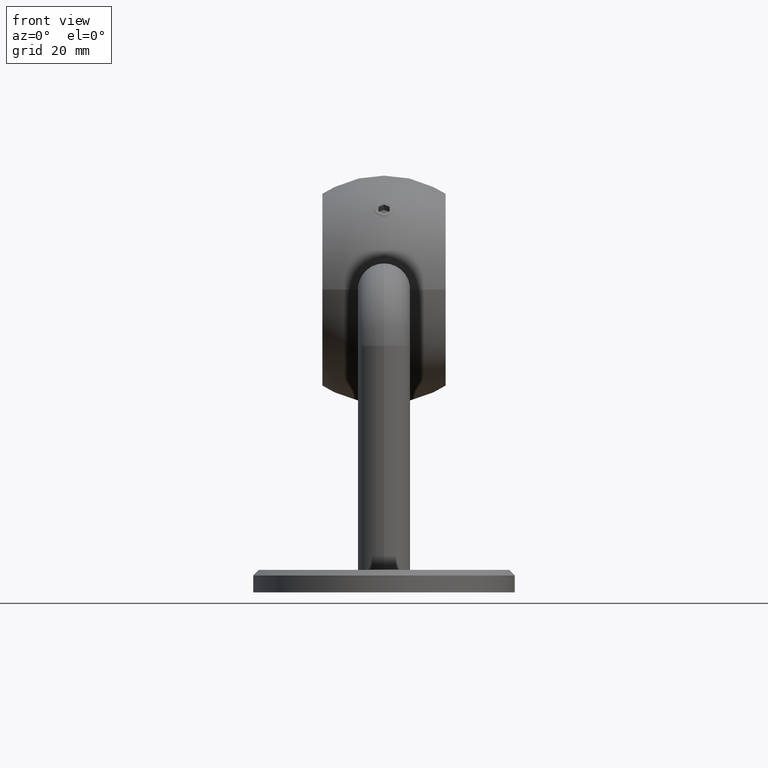
[diagram: clean part render]
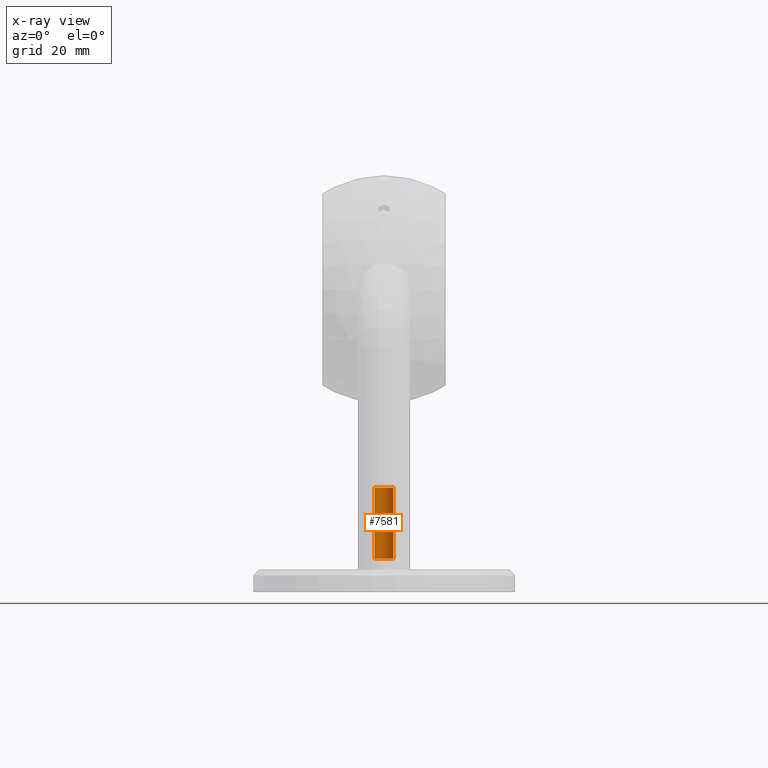
[diagram: x-ray — body ghosted, one internal face saturated and labeled with its STEP entity id]
A machine part, front view, then the same camera in x-ray: the body is ghosted and one INTERNAL B-rep face — a face not visible from any outside direction — is saturated and labeled: STEP entity #7581.
In plain terms, the highlighted cylindrical surface (edge-blend (fillet) strip) has radius 2.5 mm, axis along (-0, -0, -1).
Its self-contained STEP definition (entity closure, byte-faithful):
#86 = FACE_OUTER_BOUND ( 'NONE', #31228, .T. ) ;
#435 = CARTESIAN_POINT ( 'NONE',  ( 2.499999999999994227, 3.061616997868376239E-16, 22.00000000000000000 ) ) ;
#999 = ORIENTED_EDGE ( 'NONE', *, *, #20590, .F. ) ;
#1883 = CARTESIAN_POINT ( 'NONE',  ( 0.000000000000000000, 0.000000000000000000, 3.000000000000006217 ) ) ;
#2342 = EDGE_CURVE ( 'NONE', #3604, #4436, #3390, .T. ) ;
#3081 = ORIENTED_EDGE ( 'NONE', *, *, #29575, .F. ) ;
#3390 = LINE ( 'NONE', #34480, #4247 ) ;
#3584 = VECTOR ( 'NONE', #32676, 1000.000000000000000 ) ;
#3604 = VERTEX_POINT ( 'NONE', #435 ) ;
#4247 = VECTOR ( 'NONE', #23867, 1000.000000000000000 ) ;
#4436 = VERTEX_POINT ( 'NONE', #31402 ) ;
#5079 = CARTESIAN_POINT ( 'NONE',  ( -2.499999999999992450, 0.000000000000000000, 0.000000000000000000 ) ) ;
#6340 = ORIENTED_EDGE ( 'NONE', *, *, #28736, .T. ) ;
#6937 = CARTESIAN_POINT ( 'NONE',  ( 0.000000000000000000, 0.000000000000000000, 0.000000000000000000 ) ) ;
#7174 = DIRECTION ( 'NONE',  ( -1.000000000000000000, 0.000000000000000000, 0.000000000000000000 ) ) ;
#7231 = CIRCLE ( 'NONE', #21704, 2.499999999999992450 ) ;
#7391 = CIRCLE ( 'NONE', #10983, 2.499999999999994227 ) ;
#7464 = VERTEX_POINT ( 'NONE', #32791 ) ;
#7581 = ADVANCED_FACE ( 'NONE', ( #86 ), #29992, .F. ) ;
#10983 = AXIS2_PLACEMENT_3D ( 'NONE', #32611, #27618, #11471 ) ;
#11471 = DIRECTION ( 'NONE',  ( -1.000000000000000000, 0.000000000000000000, 0.000000000000000000 ) ) ;
#12670 = DIRECTION ( 'NONE',  ( -0.000000000000000000, -0.000000000000000000, -1.000000000000000000 ) ) ;
#15260 = DIRECTION ( 'NONE',  ( 0.000000000000000000, 0.000000000000000000, 1.000000000000000000 ) ) ;
#20590 = EDGE_CURVE ( 'NONE', #4436, #25871, #7231, .T. ) ;
#21704 = AXIS2_PLACEMENT_3D ( 'NONE', #1883, #15260, #28510 ) ;
#22192 = CARTESIAN_POINT ( 'NONE',  ( -2.499999999999992450, 0.000000000000000000, 3.000000000000006217 ) ) ;
#22362 = AXIS2_PLACEMENT_3D ( 'NONE', #6937, #12670, #7174 ) ;
#23867 = DIRECTION ( 'NONE',  ( -0.000000000000000000, -0.000000000000000000, -1.000000000000000000 ) ) ;
#24162 = ORIENTED_EDGE ( 'NONE', *, *, #2342, .F. ) ;
#25871 = VERTEX_POINT ( 'NONE', #22192 ) ;
#27618 = DIRECTION ( 'NONE',  ( -0.000000000000000000, -0.000000000000000000, -1.000000000000000000 ) ) ;
#28510 = DIRECTION ( 'NONE',  ( -1.000000000000000000, 0.000000000000000000, 0.000000000000000000 ) ) ;
#28736 = EDGE_CURVE ( 'NONE', #7464, #25871, #32689, .T. ) ;
#29575 = EDGE_CURVE ( 'NONE', #7464, #3604, #7391, .T. ) ;
#29992 = CYLINDRICAL_SURFACE ( 'NONE', #22362, 2.499999999999992450 ) ;
#31228 = EDGE_LOOP ( 'NONE', ( #24162, #3081, #6340, #999 ) ) ;
#31402 = CARTESIAN_POINT ( 'NONE',  ( 2.499999999999992450, 4.898587196589408884E-16, 3.000000000000006217 ) ) ;
#32611 = CARTESIAN_POINT ( 'NONE',  ( 0.000000000000000000, 0.000000000000000000, 22.00000000000000000 ) ) ;
#32676 = DIRECTION ( 'NONE',  ( -0.000000000000000000, -0.000000000000000000, -1.000000000000000000 ) ) ;
#32689 = LINE ( 'NONE', #5079, #3584 ) ;
#32791 = CARTESIAN_POINT ( 'NONE',  ( -2.499999999999994227, 0.000000000000000000, 22.00000000000000000 ) ) ;
#34480 = CARTESIAN_POINT ( 'NONE',  ( 2.499999999999992450, 3.061616997868373280E-16, 0.000000000000000000 ) ) ;